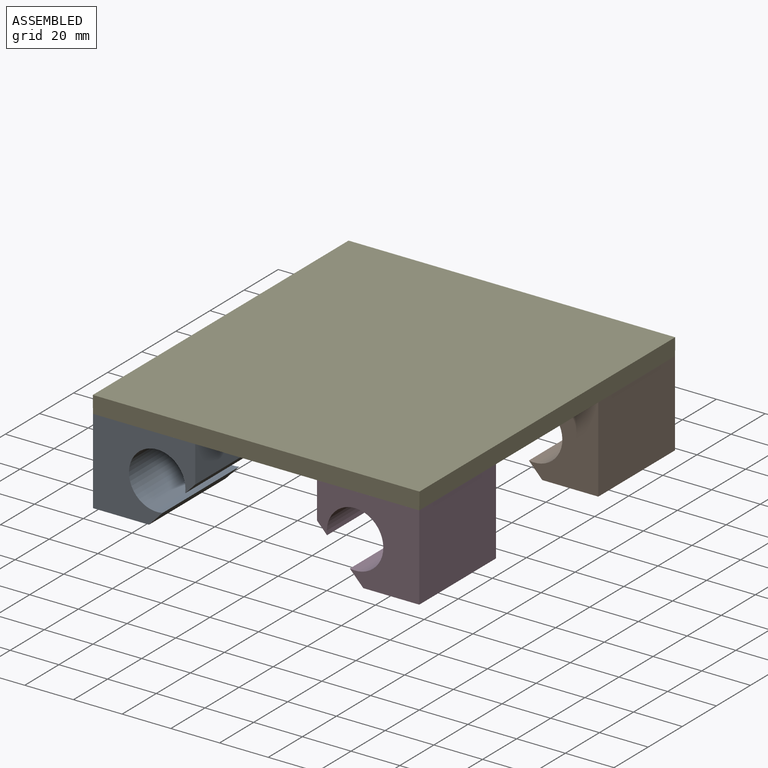
[diagram: assembled view]
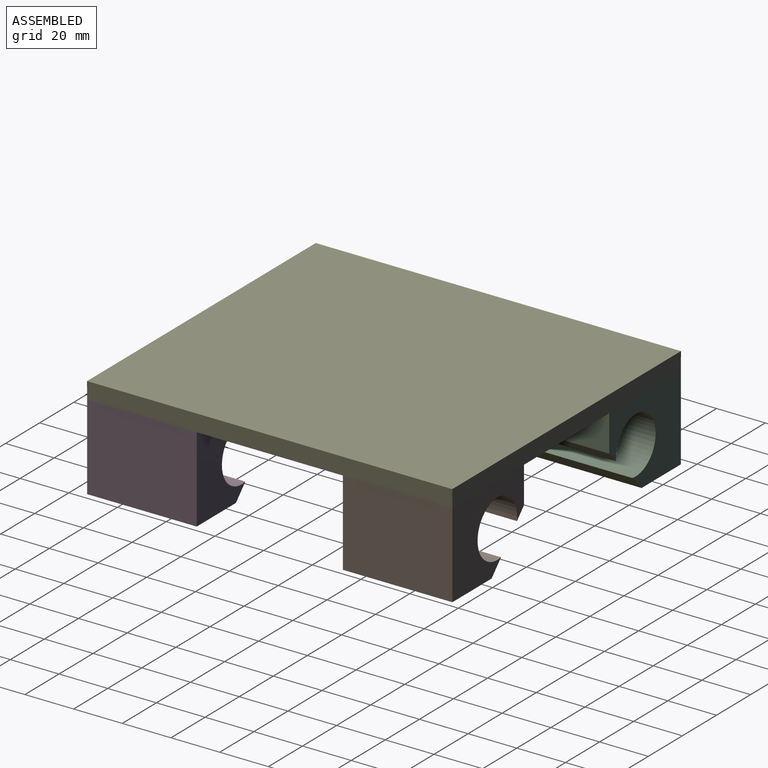
[diagram: assembled view, second angle]
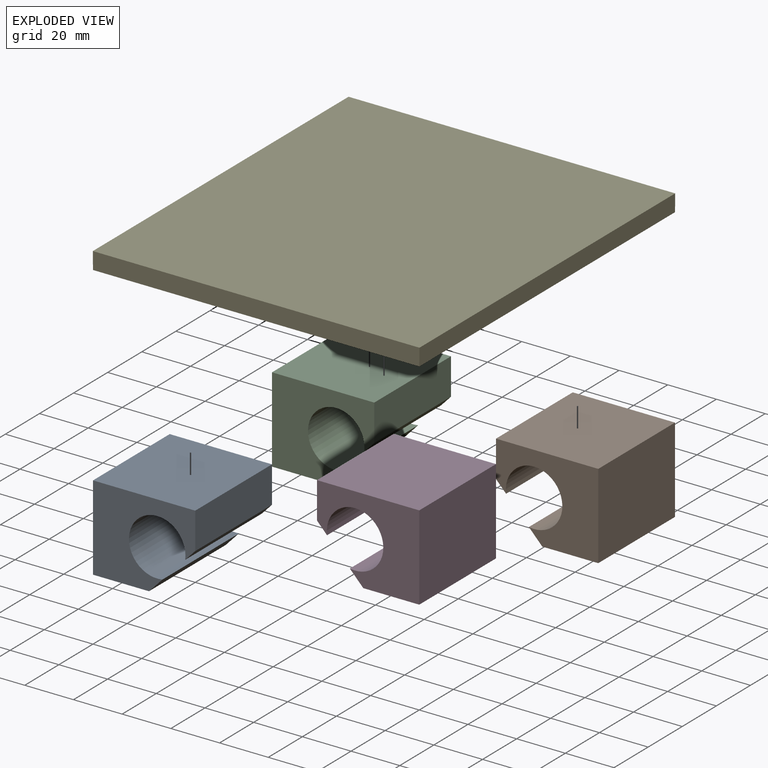
[diagram: exploded view]
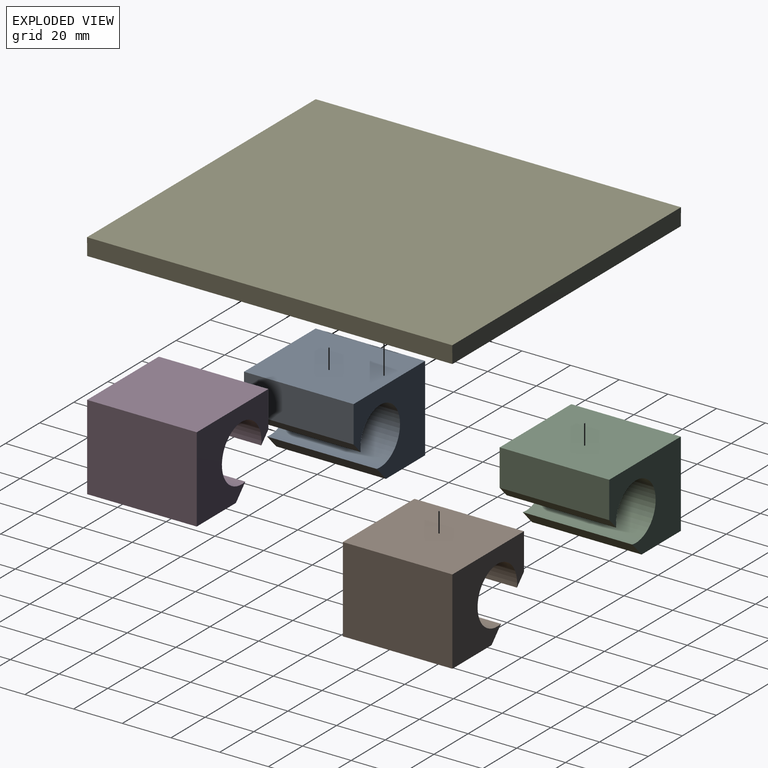
[diagram: exploded view, second angle]
ASSEMBLY  parts=5 mates=4
PART A: 9 faces, bbox 42x45x35 mm
  f0: plane 45x15mm, normal (1,0,0), area 675mm2, adj f1,f6,f7,f8
  f1: plane 45x42mm, normal (0,0,1), area 1890mm2, adj f0,f2,f7,f8
  f2: plane 45x35mm, normal (-1,0,0), area 1575mm2, adj f1,f3,f7,f8
  f3: plane 45x23mm, normal (0,0,-1), area 1035mm2, adj f2,f4,f7,f8
  f4: plane 45x5.8mm, normal (0.72,0,-0.69), area 360mm2, adj f3,f5,f7,f8
  f5: cylinder r=11.6mm len=45mm, axis (0,-1,0), area 2628mm2, adj f4,f6,f7,f8
  f6: plane 45x4.35mm, normal (0.72,0,-0.69), area 270mm2, adj f0,f5,f7,f8
  f7: plane 42x35mm, normal (0,1,0), area 877.2mm2, adj f0,f1,f2,f3,f4,f5,f6
  f8: plane 42x35mm, normal (0,-1,0), area 877.2mm2, adj f0,f1,f2,f3,f4,f5,f6
PART B: 9 faces, bbox 42x45x35 mm
  f0: plane 45x42mm, normal (0,0,1), area 1890mm2, adj f1,f6,f7,f8
  f1: plane 45x15mm, normal (-1,0,0), area 675mm2, adj f0,f2,f7,f8
  f2: plane 45x4.35mm, normal (-0.72,0,-0.69), area 270mm2, adj f1,f3,f7,f8
  f3: cylinder r=11.6mm len=45mm, axis (0,-1,0), area 2628mm2, adj f2,f4,f7,f8
  f4: plane 45x5.8mm, normal (-0.72,0,-0.69), area 360mm2, adj f3,f5,f7,f8
  f5: plane 45x23mm, normal (0,0,-1), area 1035mm2, adj f4,f6,f7,f8
  f6: plane 45x35mm, normal (1,0,0), area 1575mm2, adj f0,f5,f7,f8
  f7: plane 42x35mm, normal (0,1,0), area 877.2mm2, adj f0,f1,f2,f3,f4,f5,f6
  f8: plane 42x35mm, normal (0,-1,0), area 877.2mm2, adj f0,f1,f2,f3,f4,f5,f6
PART C: same geometry as A
PART D: same geometry as B
PART E: 6 faces, bbox 134.1x150x7 mm
  f0: plane 150x7mm, normal (1,0,-0.01), area 1050mm2, adj f1,f3,f4,f5
  f1: plane 150x134.15mm, normal (0,0,1), area 20122.2mm2, adj f0,f2,f4,f5
  f2: plane 150x7mm, normal (-1,0,-0.01), area 1050mm2, adj f1,f3,f4,f5
  f3: plane 150x134mm, normal (0,0,-1), area 20100mm2, adj f0,f2,f4,f5
  f4: plane 134.15x7mm, normal (0,1,0), area 938.5mm2, adj f0,f1,f2,f3
  f5: plane 134.15x7mm, normal (0,-1,0), area 938.5mm2, adj f0,f1,f2,f3
PLACE A t=(119.12,-160.16,-6.67)mm
PLACE B t=(119.12,-55.16,-6.67)mm
PLACE C t=(119.12,-55.16,-6.67)mm
PLACE D t=(119.12,-160.16,-6.67)mm
PLACE E t=(119.12,-160.16,-6.67)mm
MATE fastened E.f3 <-> B.f0  axis (0,0,-1) through (186.12,-10.16,28.33)mm
MATE fastened E.f3 <-> D.f0  axis (0,0,-1) through (186.12,-160.16,28.33)mm
MATE fastened C.f1 <-> E.f3  axis (0,0,1) through (52.12,-10.16,28.33)mm
MATE fastened A.f1 <-> E.f3  axis (0,0,1) through (52.12,-160.16,28.33)mm
